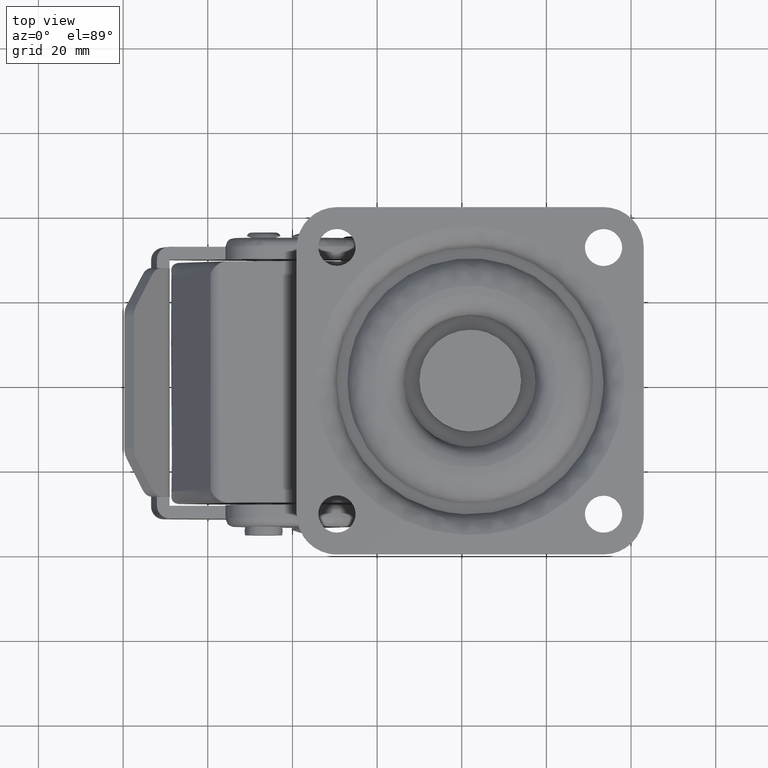
[diagram: clean part render]
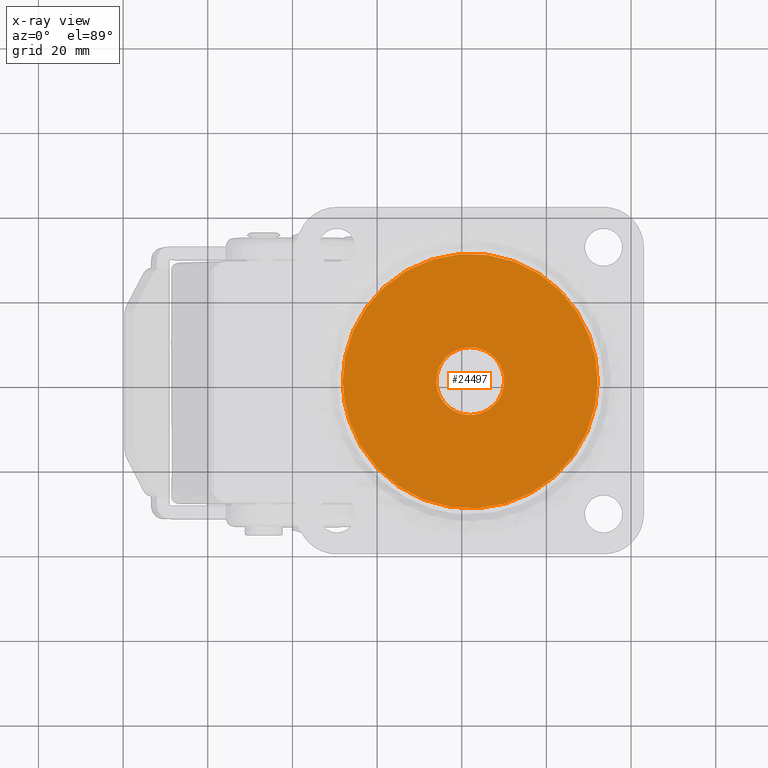
[diagram: x-ray — body ghosted, one internal face saturated and labeled with its STEP entity id]
A machine part, top view, then the same camera in x-ray: the body is ghosted and one INTERNAL B-rep face — a face not visible from any outside direction — is saturated and labeled: STEP entity #24497.
In plain terms, the highlighted face is a freeform B-spline surface patch.
Its self-contained STEP definition (entity closure, byte-faithful):
#23373=CARTESIAN_POINT('',(27.706003306405471,-5.607273930620898,50.500000000000007));
#23374=VERTEX_POINT('',#23373);
#23380=CARTESIAN_POINT('',(21.999998666229150,-7.999999999999889,50.500000000000007));
#23381=VERTEX_POINT('',#23380);
#23382=CARTESIAN_POINT('',(27.706003306405471,-5.607273930620898,50.500000000000007));
#23383=CARTESIAN_POINT('',(27.172773264399009,-6.150314938930952,50.499999999999993));
#23384=CARTESIAN_POINT('',(26.135826180355760,-6.940321924240295,50.500000000000092));
#23385=CARTESIAN_POINT('',(24.183588610910618,-7.787569903474494,50.499999999999858));
#23386=CARTESIAN_POINT('',(22.827278088680011,-8.000449403260378,50.500000000000178));
#23387=CARTESIAN_POINT('',(21.999998666229150,-7.999999999999889,50.500000000000007));
#23388=B_SPLINE_CURVE_WITH_KNOTS('',3,(#23382,#23383,#23384,#23385,#23386,#23387),.UNSPECIFIED.,.F.,.U.,(4,1,1,4),(0.000000039753442,2.283136891152233,3.871381159358544,6.353040361737371),.UNSPECIFIED.);
#23389=EDGE_CURVE('',#23374,#23381,#23388,.T.);
#23391=CARTESIAN_POINT('',(14.000000000000250,0.0,50.500000000000000));
#23392=VERTEX_POINT('',#23391);
#23393=CARTESIAN_POINT('',(21.999998666229150,-7.999999999999889,50.500000000000007));
#23394=CARTESIAN_POINT('',(21.476402590127400,-8.000068334302137,50.500000000000000));
#23395=CARTESIAN_POINT('',(20.494684023065989,-7.903272828597355,50.499999999999893));
#23396=CARTESIAN_POINT('',(19.169745648816502,-7.519043641853018,50.500000000000107));
#23397=CARTESIAN_POINT('',(17.923844486348109,-6.929812514410775,50.500000000000050));
#23398=CARTESIAN_POINT('',(16.821594866930379,-6.153508552040453,50.499999999999787));
#23399=CARTESIAN_POINT('',(15.737239985221830,-5.055788264831065,50.500000000000227));
#23400=CARTESIAN_POINT('',(14.822524741878169,-3.687066147112227,50.499999999999787));
#23401=CARTESIAN_POINT('',(14.157500906653469,-1.930690949157467,50.500000000000412));
#23402=CARTESIAN_POINT('',(13.999839451234539,-0.654507946661554,50.499999999999467));
#23403=CARTESIAN_POINT('',(14.000000000000250,0.0,50.500000000000000));
#23404=B_SPLINE_CURVE_WITH_KNOTS('',3,(#23393,#23394,#23395,#23396,#23397,#23398,#23399,#23400,#23401,#23402,#23403),.UNSPECIFIED.,.F.,.U.,(4,1,1,1,1,1,1,1,4),(0.000000140649627,1.570779355645058,2.945258526836298,4.123367056145993,5.694216471838842,6.970433098948930,8.737607285777278,10.602963144112060,12.566448711267070),.UNSPECIFIED.);
#23405=EDGE_CURVE('',#23381,#23392,#23404,.T.);
#23407=CARTESIAN_POINT('',(16.293996693595059,5.607273930620872,50.500000000000000));
#23408=VERTEX_POINT('',#23407);
#23409=CARTESIAN_POINT('',(14.000000000000250,0.0,50.500000000000000));
#23410=CARTESIAN_POINT('',(13.999602761143191,0.841447664750218,50.500000000000050));
#23411=CARTESIAN_POINT('',(14.221598183592491,2.232700062472391,50.499999999999908));
#23412=CARTESIAN_POINT('',(15.068265296094779,4.134995051589474,50.500000000000107));
#23413=CARTESIAN_POINT('',(15.817528286921830,5.122679244573625,50.499999999999950));
#23414=CARTESIAN_POINT('',(16.293996693595059,5.607273930620872,50.500000000000000));
#23415=B_SPLINE_CURVE_WITH_KNOTS('',3,(#23409,#23410,#23411,#23412,#23413,#23414),.UNSPECIFIED.,.F.,.U.,(4,1,1,4),(0.000000035589492,2.524212926835782,4.174632091114513,6.213410202321495),.UNSPECIFIED.);
#23416=EDGE_CURVE('',#23392,#23408,#23415,.T.);
#23446=CARTESIAN_POINT('',(22.000001333771500,7.999999999999888,50.500000000000000));
#23447=VERTEX_POINT('',#23446);
#23448=CARTESIAN_POINT('',(16.293996693595059,5.607273930620872,50.500000000000000));
#23449=CARTESIAN_POINT('',(16.711378415688699,6.032169178808401,50.500000000000028));
#23450=CARTESIAN_POINT('',(17.512481926857340,6.682988471513839,50.500000000000043));
#23451=CARTESIAN_POINT('',(18.918313122730609,7.433110580502346,50.500000000000121));
#23452=CARTESIAN_POINT('',(20.378677127118099,7.891256078360221,50.499999999999410));
#23453=CARTESIAN_POINT('',(21.470582058616941,8.000062452908779,50.500000000001222));
#23454=CARTESIAN_POINT('',(22.000001333771500,7.999999999999888,50.500000000000000));
#23455=B_SPLINE_CURVE_WITH_KNOTS('',3,(#23448,#23449,#23450,#23451,#23452,#23453,#23454),.UNSPECIFIED.,.F.,.U.,(4,1,1,1,4),(0.000000039753208,1.786793390954311,3.077276302248834,4.764780281230356,6.353040361737514),.UNSPECIFIED.);
#23456=EDGE_CURVE('',#23408,#23447,#23455,.T.);
#23458=CARTESIAN_POINT('',(30.000000000000249,0.0,50.500000000000000));
#23459=VERTEX_POINT('',#23458);
#23460=CARTESIAN_POINT('',(22.000001333771500,7.999999999999888,50.500000000000000));
#23461=CARTESIAN_POINT('',(22.523597821437718,8.000071426854040,50.499999999999751));
#23462=CARTESIAN_POINT('',(23.505314518614931,7.903263191925689,50.500000000000369));
#23463=CARTESIAN_POINT('',(24.830257546044422,7.519052108087024,50.499999999999822));
#23464=CARTESIAN_POINT('',(26.076149916263930,6.929803282740058,50.500000000000341));
#23465=CARTESIAN_POINT('',(27.178414417260939,6.153519268416694,50.499999999999950));
#23466=CARTESIAN_POINT('',(28.239657116599279,5.079130617198955,50.499999999999872));
#23467=CARTESIAN_POINT('',(29.199135920902521,3.662481518658431,50.500000000000291));
#23468=CARTESIAN_POINT('',(29.854943203583449,1.898067476909208,50.499999999999389));
#23469=CARTESIAN_POINT('',(30.000060196949381,0.589042416778163,50.500000000000803));
#23470=CARTESIAN_POINT('',(30.000000000000249,0.0,50.500000000000000));
#23471=B_SPLINE_CURVE_WITH_KNOTS('',3,(#23460,#23461,#23462,#23463,#23464,#23465,#23466,#23467,#23468,#23469,#23470),.UNSPECIFIED.,.F.,.U.,(4,1,1,1,1,1,1,1,4),(0.000000140658749,1.570779355652901,2.945258526843249,4.123367056151889,5.694216471843334,6.970433098952388,8.639420849443141,10.799296247513279,12.566448711267020),.UNSPECIFIED.);
#23472=EDGE_CURVE('',#23447,#23459,#23471,.T.);
#23474=CARTESIAN_POINT('',(30.000000000000249,0.0,50.500000000000000));
#23475=CARTESIAN_POINT('',(30.000087497827920,-0.614862307174203,50.499999999999858));
#23476=CARTESIAN_POINT('',(29.846462069334070,-1.941696833638828,50.500000000000227));
#23477=CARTESIAN_POINT('',(29.102328352962449,-3.894313024033180,50.499999999999893));
#23478=CARTESIAN_POINT('',(28.227918658760089,-5.076567956435691,50.500000000000043));
#23479=CARTESIAN_POINT('',(27.706003306405471,-5.607273930620898,50.500000000000007));
#23480=B_SPLINE_CURVE_WITH_KNOTS('',3,(#23474,#23475,#23476,#23477,#23478,#23479),.UNSPECIFIED.,.F.,.U.,(4,1,1,4),(0.000000035588164,1.844610730421145,3.980453781115194,6.213410202321542),.UNSPECIFIED.);
#23481=EDGE_CURVE('',#23459,#23374,#23480,.T.);
#24340=CARTESIAN_POINT('',(-7.567846196353901,5.640368319074842,50.500000000000000));
#24341=VERTEX_POINT('',#24340);
#24353=CARTESIAN_POINT('',(-8.101017955562348,0.0,50.500000000000000));
#24354=VERTEX_POINT('',#24353);
#24355=CARTESIAN_POINT('',(-8.101017955562348,0.0,50.500000000000000));
#24356=CARTESIAN_POINT('',(-8.101180553127030,1.891315609590096,50.499999999999929));
#24357=CARTESIAN_POINT('',(-7.922338072101383,3.782576919113891,50.500000000000071));
#24358=CARTESIAN_POINT('',(-7.567846196353901,5.640368319074842,50.500000000000000));
#24359=B_SPLINE_CURVE_WITH_KNOTS('',3,(#24355,#24356,#24357,#24358),.UNSPECIFIED.,.F.,.U.,(4,4),(1.061912E-009,5.673916417235223),.UNSPECIFIED.);
#24360=EDGE_CURVE('',#24354,#24341,#24359,.T.);
#24362=CARTESIAN_POINT('',(51.567846196353912,-5.640368319074847,50.500000000000000));
#24363=VERTEX_POINT('',#24362);
#24364=CARTESIAN_POINT('',(51.567846196353912,-5.640368319074847,50.500000000000000));
#24365=CARTESIAN_POINT('',(51.318477317822079,-6.947839215427274,50.499999999999972));
#24366=CARTESIAN_POINT('',(50.660485006552300,-9.473468520875608,50.500000000000107));
#24367=CARTESIAN_POINT('',(48.941954592992147,-13.720018684809350,50.499999999999851));
#24368=CARTESIAN_POINT('',(46.405101752184017,-17.894239911810519,50.500000000000533));
#24369=CARTESIAN_POINT('',(43.248107022205389,-21.458052413994270,50.499999999999353));
#24370=CARTESIAN_POINT('',(39.811705483948167,-24.396725161730750,50.500000000000803));
#24371=CARTESIAN_POINT('',(36.668404847799927,-26.381825884305869,50.499999999999652));
#24372=CARTESIAN_POINT('',(32.993954653563698,-28.095422094020201,50.499999999999922));
#24373=CARTESIAN_POINT('',(29.910055357092979,-29.120931428318549,50.500000000000213));
#24374=CARTESIAN_POINT('',(26.276123632294190,-29.857160573456419,50.500000000000057));
#24375=CARTESIAN_POINT('',(22.637771196675700,-30.186740078901192,50.500000000000142));
#24376=CARTESIAN_POINT('',(18.290577884787901,-29.990039359698649,50.499999999999467));
#24377=CARTESIAN_POINT('',(13.850386214534840,-29.098958270719951,50.500000000002032));
#24378=CARTESIAN_POINT('',(9.927387556810688,-27.662786630585181,50.499999999996277));
#24379=CARTESIAN_POINT('',(6.736374806026491,-26.010365596660179,50.500000000006409));
#24380=CARTESIAN_POINT('',(3.981597398284252,-24.187724586097300,50.499999999991978));
#24381=CARTESIAN_POINT('',(1.263618130603109,-21.925762103357620,50.500000000010111));
#24382=CARTESIAN_POINT('',(-1.115292996905810,-19.385889626693679,50.499999999995879));
#24383=CARTESIAN_POINT('',(-3.149490948867745,-16.638434701861978,50.500000000001243));
#24384=CARTESIAN_POINT('',(-5.095072568949283,-13.344840183419389,50.499999999998572));
#24385=CARTESIAN_POINT('',(-6.671441116309775,-9.533697208276694,50.500000000003837));
#24386=CARTESIAN_POINT('',(-7.825950908145402,-4.861154574674494,50.499999999989292));
#24387=CARTESIAN_POINT('',(-8.101197135704920,-1.794027071106382,50.500000000021807));
#24388=CARTESIAN_POINT('',(-8.101017955562348,0.0,50.500000000000000));
#24389=B_SPLINE_CURVE_WITH_KNOTS('',3,(#24364,#24365,#24366,#24367,#24368,#24369,#24370,#24371,#24372,#24373,#24374,#24375,#24376,#24377,#24378,#24379,#24380,#24381,#24382,#24383,#24384,#24385,#24386,#24387,#24388),.UNSPECIFIED.,.F.,.U.,(4,1,1,1,1,1,1,1,1,1,1,1,1,1,1,1,1,1,1,1,1,1,4),(0.000000197639181,3.993117208579221,7.812645332056434,13.715616260479450,18.576887836525831,22.049224581332581,27.257727050048910,29.688357173554198,34.202373063842678,36.980259809226567,40.799783471551983,45.140103614717823,50.001309790829978,54.341753897892353,57.640440395493158,60.765563942663391,64.237889183641826,68.231065747091733,71.182551262126168,74.481239211404286,79.689748173657421,83.509300817155378,88.891351891721371),.UNSPECIFIED.);
#24390=EDGE_CURVE('',#24363,#24354,#24389,.T.);
#24437=CARTESIAN_POINT('',(52.101017955562362,0.0,50.500000000000000));
#24438=VERTEX_POINT('',#24437);
#24439=CARTESIAN_POINT('',(52.101017955562362,0.0,50.500000000000000));
#24440=CARTESIAN_POINT('',(52.101110780013009,-1.891308963767694,50.499999999999929));
#24441=CARTESIAN_POINT('',(51.922403836318850,-3.782584512129446,50.500000000000227));
#24442=CARTESIAN_POINT('',(51.567846196353912,-5.640368319074847,50.500000000000000));
#24443=B_SPLINE_CURVE_WITH_KNOTS('',3,(#24439,#24440,#24441,#24442),.UNSPECIFIED.,.F.,.U.,(4,4),(1.062109E-009,5.673916417235228),.UNSPECIFIED.);
#24444=EDGE_CURVE('',#24438,#24363,#24443,.T.);
#24446=CARTESIAN_POINT('',(-7.567846196353901,5.640368319074842,50.500000000000000));
#24447=CARTESIAN_POINT('',(-7.199409403217768,7.573209403622834,50.499999999999957));
#24448=CARTESIAN_POINT('',(-6.262134402332819,10.752455471903250,50.500000000000028));
#24449=CARTESIAN_POINT('',(-4.113689293188052,15.189639557212690,50.499999999999751));
#24450=CARTESIAN_POINT('',(-1.890922790071939,18.452633848728311,50.500000000000313));
#24451=CARTESIAN_POINT('',(0.575972218030127,21.221353145687189,50.500000000000270));
#24452=CARTESIAN_POINT('',(3.060233206660480,23.486068276911450,50.499999999999247));
#24453=CARTESIAN_POINT('',(6.455928081183443,25.915405629247640,50.500000000000462));
#24454=CARTESIAN_POINT('',(10.241200671621080,27.829144211384339,50.499999999999922));
#24455=CARTESIAN_POINT('',(14.421773526422619,29.219226005489158,50.500000000000107));
#24456=CARTESIAN_POINT('',(18.295352645557848,29.969283090344010,50.500000000000121));
#24457=CARTESIAN_POINT('',(21.828388779677059,30.156041284821729,50.500000000000071));
#24458=CARTESIAN_POINT('',(25.240749503854250,29.981876774362640,50.500000000000107));
#24459=CARTESIAN_POINT('',(28.793678997812322,29.427496916691432,50.500000000000071));
#24460=CARTESIAN_POINT('',(32.845796897658317,28.191220580202629,50.500000000000099));
#24461=CARTESIAN_POINT('',(37.149046810111287,26.163816377947910,50.500000000000099));
#24462=CARTESIAN_POINT('',(40.790010704805297,23.663173917660359,50.500000000000071));
#24463=CARTESIAN_POINT('',(44.219938432685993,20.456442083145340,50.500000000000028));
#24464=CARTESIAN_POINT('',(46.732440985757123,17.334841099825582,50.499999999999929));
#24465=CARTESIAN_POINT('',(49.072813938000749,13.398491831630279,50.500000000000732));
#24466=CARTESIAN_POINT('',(50.516030472719500,9.909472142360389,50.499999999999893));
#24467=CARTESIAN_POINT('',(51.763310652916189,5.266165130190773,50.499999999996163));
#24468=CARTESIAN_POINT('',(52.101447148254643,2.199184067853895,50.500000000002849));
#24469=CARTESIAN_POINT('',(52.101017955562362,0.0,50.500000000000000));
#24470=B_SPLINE_CURVE_WITH_KNOTS('',3,(#24446,#24447,#24448,#24449,#24450,#24451,#24452,#24453,#24454,#24455,#24456,#24457,#24458,#24459,#24460,#24461,#24462,#24463,#24464,#24465,#24466,#24467,#24468,#24469),.UNSPECIFIED.,.F.,.U.,(4,1,1,1,1,1,1,1,1,1,1,1,1,1,1,1,1,1,1,1,1,4),(0.000000197000844,5.902866687187753,9.896055012220444,14.757319706192090,17.708807173579832,21.007523377106150,24.827092771936989,30.209209688458859,33.681523789436120,38.021948723981161,42.015101659077757,44.272130897576517,48.265145648381399,52.779198124328992,56.946007018389103,62.501711835868988,65.974048723464065,71.008915204044015,74.481239211298529,79.689748173589877,82.293950782261504,88.891351891722067),.UNSPECIFIED.);
#24471=EDGE_CURVE('',#24341,#24438,#24470,.T.);
#24478=CARTESIAN_POINT('',(55.108109532639801,-33.107827697224842,50.500000000000000));
#24479=CARTESIAN_POINT('',(-11.108111147384230,-33.107827697224842,50.500000000000000));
#24480=CARTESIAN_POINT('',(55.108109532639801,33.107825547302063,50.500000000000000));
#24481=CARTESIAN_POINT('',(-11.108111147384230,33.107825547302063,50.500000000000000));
#24482=B_SPLINE_SURFACE_WITH_KNOTS('',1,1,((#24478,#24480),(#24479,#24481)),.UNSPECIFIED.,.F.,.F.,.U.,(2,2),(2,2),(0.0,66.216220680024037),(0.0,66.215653244526905),.UNSPECIFIED.);
#24483=ORIENTED_EDGE('',*,*,#24360,.T.);
#24484=ORIENTED_EDGE('',*,*,#24471,.T.);
#24485=ORIENTED_EDGE('',*,*,#24444,.T.);
#24486=ORIENTED_EDGE('',*,*,#24390,.T.);
#24487=EDGE_LOOP('',(#24483,#24484,#24485,#24486));
#24488=FACE_OUTER_BOUND('',#24487,.T.);
#24489=ORIENTED_EDGE('',*,*,#23405,.F.);
#24490=ORIENTED_EDGE('',*,*,#23389,.F.);
#24491=ORIENTED_EDGE('',*,*,#23481,.F.);
#24492=ORIENTED_EDGE('',*,*,#23472,.F.);
#24493=ORIENTED_EDGE('',*,*,#23456,.F.);
#24494=ORIENTED_EDGE('',*,*,#23416,.F.);
#24495=EDGE_LOOP('',(#24489,#24490,#24491,#24492,#24493,#24494));
#24496=FACE_BOUND('',#24495,.T.);
#24497=ADVANCED_FACE('',(#24488,#24496),#24482,.T.);